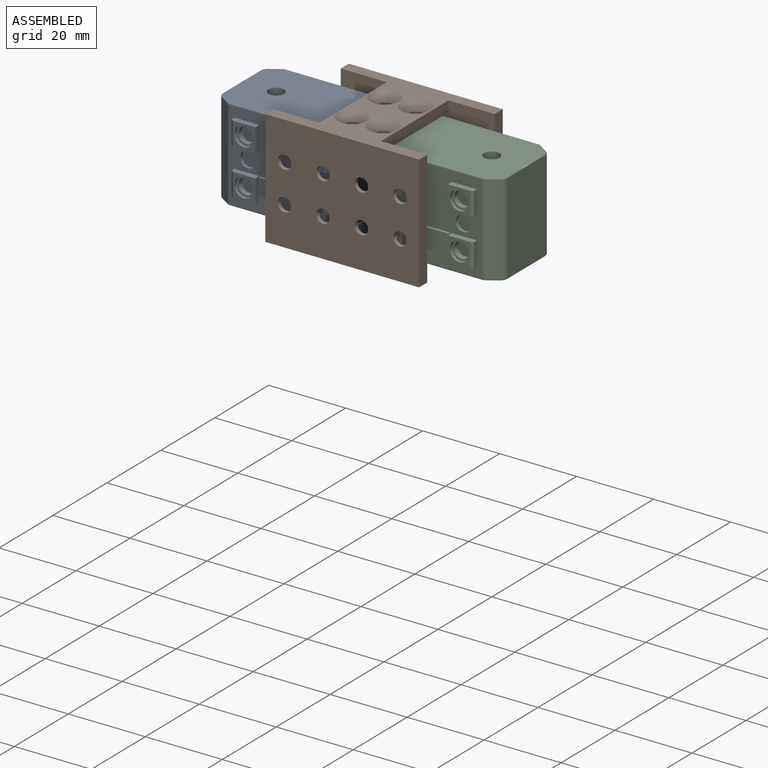
[diagram: assembled view]
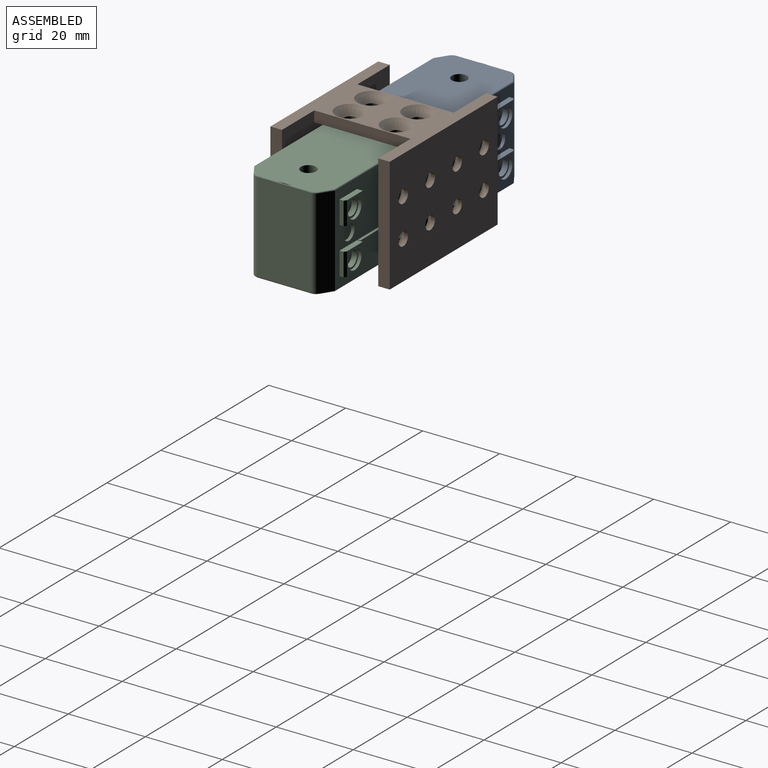
[diagram: assembled view, second angle]
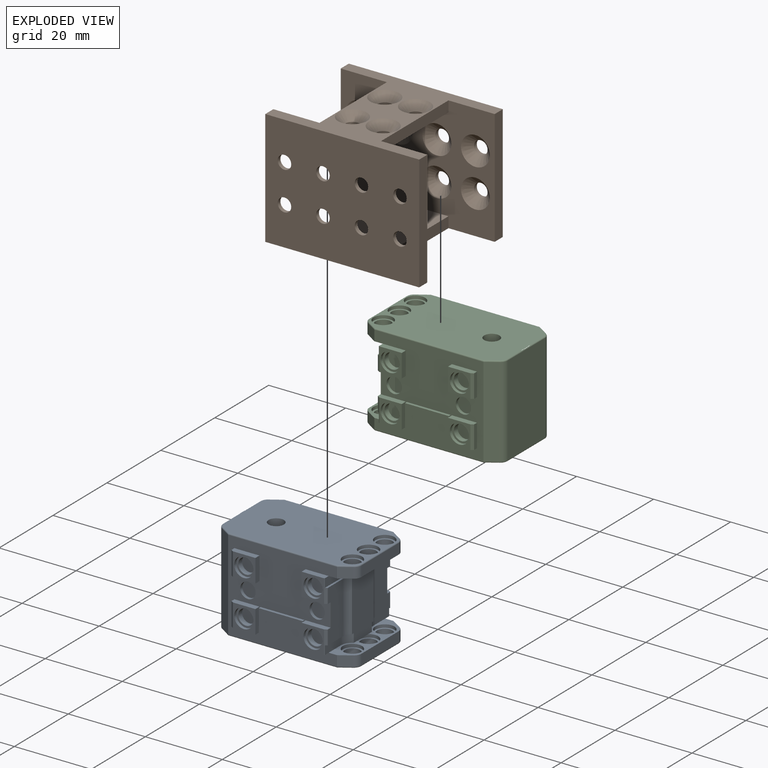
[diagram: exploded view]
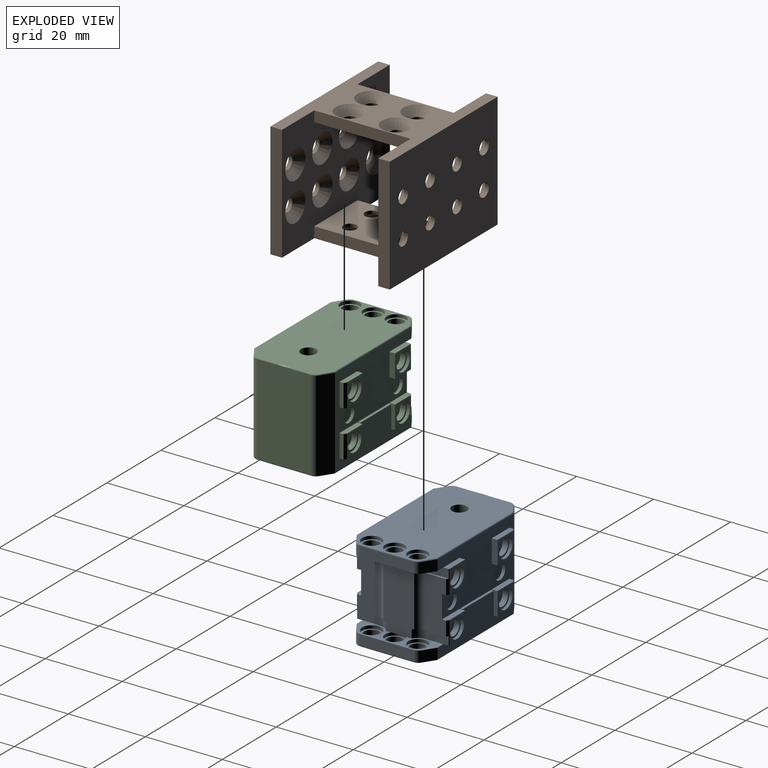
[diagram: exploded view, second angle]
ASSEMBLY  parts=3 mates=2
PART A: 203 faces, bbox 24x36x24 mm
  f0: cylinder r=8.9mm len=3.75mm, axis (0,0,1), area 0mm2, adj f1,f138
  f1: plane 35.6x20.4mm, normal (0,0,1), area 633.5mm2, adj f0,f38,f39,f40,f42,f43,f44,f61
  f2: plane 4x4mm, normal (1,0,0), area 12.6mm2, adj f10
  f3: plane 4x4mm, normal (1,0,0), area 12.6mm2, adj f11
  f4: plane 4x4mm, normal (1,0,0), area 12.6mm2, adj f12
  f5: plane 4x4mm, normal (1,0,0), area 12.6mm2, adj f13
  f6: plane 4x4mm, normal (-1,0,0), area 12.6mm2, adj f14
  f7: plane 4x4mm, normal (-1,0,0), area 12.6mm2, adj f15
  f8: plane 4x4mm, normal (-1,0,0), area 12.6mm2, adj f16
  f9: plane 4x4mm, normal (-1,0,0), area 12.6mm2, adj f17
  f10: cylinder r=2mm len=4mm, axis (1,0,0), area 17.6mm2, adj f2,f18
  f11: cylinder r=2mm len=4mm, axis (1,0,0), area 17.6mm2, adj f3,f19
  f12: cylinder r=2mm len=4mm, axis (1,0,0), area 17.6mm2, adj f4,f20
  f13: cylinder r=2mm len=4mm, axis (1,0,0), area 17.6mm2, adj f5,f21
  f14: cylinder r=2mm len=4mm, axis (1,0,0), area 17.6mm2, adj f6,f28
  f15: cylinder r=2mm len=4mm, axis (1,0,0), area 17.6mm2, adj f7,f29
  f16: cylinder r=2mm len=4mm, axis (1,0,0), area 17.6mm2, adj f8,f31
  f17: cylinder r=2mm len=4mm, axis (1,0,0), area 17.6mm2, adj f9,f32
  f18: plane 5x5mm, normal (1,0,0), area 7.1mm2, adj f10,f34
  f19: plane 5x5mm, normal (1,0,0), area 7.1mm2, adj f11,f35
  f20: plane 5x5mm, normal (1,0,0), area 7.1mm2, adj f12,f36
  f21: plane 5x5mm, normal (1,0,0), area 7.1mm2, adj f13,f37
  f22: plane 5x5mm, normal (0,0,1), area 7.1mm2, adj f26,f38
  f23: plane 5x5mm, normal (0,0,1), area 7.1mm2, adj f25,f39
  f24: plane 5x5mm, normal (0,0,1), area 7.1mm2, adj f27,f40
  f25: cylinder r=2mm len=4mm, axis (0,0,1), area 17.6mm2, adj f23,f41
  f26: cylinder r=2mm len=4mm, axis (0,0,1), area 17.6mm2, adj f22,f45
  f27: cylinder r=2mm len=4mm, axis (0,0,1), area 17.6mm2, adj f24,f46
  f28: plane 5x5mm, normal (-1,0,0), area 7.1mm2, adj f14,f47
  f29: plane 5x5mm, normal (-1,0,0), area 7.1mm2, adj f15,f48
  f30: plane 4x1mm, normal (0,0,1), area 2.8mm2, adj f49,f74
  f31: plane 5x5mm, normal (-1,0,0), area 7.1mm2, adj f16,f50
  f32: plane 5x5mm, normal (-1,0,0), area 7.1mm2, adj f17,f51
  f33: plane 4x1mm, normal (0,0,-1), area 2.8mm2, adj f49,f91
  f34: cylinder r=2.5mm len=5mm, axis (1,0,0), area 12.6mm2, adj f18,f54
  f35: cylinder r=2.5mm len=5mm, axis (1,0,0), area 12.6mm2, adj f19,f60
  f36: cylinder r=2.5mm len=5mm, axis (1,0,0), area 12.6mm2, adj f20,f63
  f37: cylinder r=2.5mm len=5mm, axis (1,0,0), area 12.6mm2, adj f21,f65
  f38: cylinder r=2.5mm len=5mm, axis (0,0,1), area 12.6mm2, adj f1,f22
  f39: cylinder r=2.5mm len=5mm, axis (0,0,1), area 12.6mm2, adj f1,f23
  f40: cylinder r=2.5mm len=5mm, axis (0,0,1), area 12.6mm2, adj f1,f24
  f41: plane 5x5mm, normal (0,0,-1), area 7.1mm2, adj f25,f74
  f42: revolved ~1.68x1.07mm, area 0.9mm2, adj f1,f43,f73,f77
  f43: cylinder r=0.3mm len=13.83mm, axis (1,0,0), area 6.5mm2, adj f1,f42,f44,f78
  f44: revolved ~1.68x1.07mm, area 0.9mm2, adj f1,f43,f61,f79
  f45: plane 5x5mm, normal (0,0,-1), area 7.1mm2, adj f26,f82
  f46: plane 5x5mm, normal (0,0,-1), area 7.1mm2, adj f27,f83
  f47: cylinder r=2.5mm len=5mm, axis (1,0,0), area 12.6mm2, adj f28,f84
  f48: cylinder r=2.5mm len=5mm, axis (1,0,0), area 12.6mm2, adj f29,f90
  f49: plane 18x8mm, normal (0,-1,0), area 138.4mm2, adj f30,f33,f56,f57,f58,f75,f81,f86
  f50: cylinder r=2.5mm len=5mm, axis (1,0,0), area 12.6mm2, adj f31,f99
  f51: cylinder r=2.5mm len=5mm, axis (1,0,0), area 12.6mm2, adj f32,f101
  f52: revolved ~1.68x1.07mm, area 0.9mm2, adj f111,f186,f187,f200
  f53: revolved ~1.68x1.07mm, area 0.9mm2, adj f112,f187,f188,f200
  f54: plane 6x5.84mm, normal (1,0,0), area 15.4mm2, adj f34,f59,f114,f115,f116
  f55: plane 6x0.66mm, normal (0.84,-0.54,0), area 3.3mm2, adj f56,f60,f80,f117,f118,f120
  f56: plane 8.54x1.53mm, normal (0,0,1), area 4.5mm2, adj f49,f55,f57,f80,f81,f117
  f57: cylinder r=2.5mm len=13.5mm, axis (0,0,1), area 31.3mm2, adj f49,f56,f58,f117
  f58: plane 8.54x1.53mm, normal (0,0,-1), area 4.5mm2, adj f49,f57,f59,f94,f95,f117
  f59: plane 6x0.66mm, normal (0.84,-0.54,0), area 3.3mm2, adj f54,f58,f94,f114,f116,f117
  f60: plane 6x5.84mm, normal (1,0,0), area 15.4mm2, adj f35,f55,f118,f119,f120
  f61: cylinder r=0.3mm len=3.1mm, axis (0.54,0.84,0), area 1.6mm2, adj f1,f44,f113,f121
  f62: plane 6x0.66mm, normal (0.84,0.54,0), area 4.7mm2, adj f63,f122,f123,f124
  f63: plane 6x5.84mm, normal (1,0,0), area 15.4mm2, adj f36,f62,f122,f124,f125
  f64: plane 6x0.66mm, normal (0.84,0.54,0), area 4.7mm2, adj f65,f126,f127,f128
  f65: plane 6x5.84mm, normal (1,0,0), area 15.4mm2, adj f37,f64,f126,f128,f129
  f66: plane 4x4mm, normal (1,0,0), area 12.6mm2, adj f130
  f67: plane 4x4mm, normal (1,0,0), area 12.6mm2, adj f131
  f68: plane 11.4x6mm, normal (1,0,0), area 68.4mm2, adj f132,f133,f134,f135
  f69: revolved ~1.68x1.07mm, area 0.9mm2, adj f137,f190,f191,f200
  f70: revolved ~1.68x1.07mm, area 0.9mm2, adj f1,f136,f137,f138
  f71: revolved ~1.68x1.07mm, area 0.9mm2, adj f139,f191,f192,f200
  f72: revolved ~1.68x1.07mm, area 0.9mm2, adj f1,f138,f139,f140
  f73: cylinder r=0.3mm len=3.1mm, axis (0.54,-0.84,0), area 1.6mm2, adj f1,f42,f141,f142
  f74: cylinder r=2.5mm len=5mm, axis (0,0,1), area 12.6mm2, adj f30,f41,f143
  f75: cylinder r=3.02mm len=2.63mm, axis (0,0,1), area 7.2mm2, adj f49,f76,f88,f143
  f76: plane 5.91x2.25mm, normal (0,-1,0), area 13.3mm2, adj f75,f88,f89,f143,f144
  f77: cylinder r=2mm len=2.7mm, axis (0,0,1), area 5.4mm2, adj f42,f78,f142,f143
  f78: plane 13.83x2.7mm, normal (0,-1,0), area 37.3mm2, adj f43,f77,f79,f143
  f79: cylinder r=2mm len=2.7mm, axis (0,0,1), area 5.4mm2, adj f44,f78,f121,f143
  f80: plane 5.91x2.25mm, normal (0,-1,0), area 13.3mm2, adj f55,f56,f81,f120,f143
  f81: cylinder r=3.02mm len=2.63mm, axis (0,0,1), area 7.2mm2, adj f49,f56,f80,f143
  f82: cylinder r=2.5mm len=5mm, axis (0,0,1), area 12.6mm2, adj f45,f143
  f83: cylinder r=2.5mm len=5mm, axis (0,0,1), area 12.6mm2, adj f46,f143
  f84: plane 6x5.84mm, normal (-1,0,0), area 15.4mm2, adj f47,f89,f144,f145,f146
  f85: plane 6x0.66mm, normal (-0.84,-0.54,0), area 3.3mm2, adj f86,f90,f93,f147,f148,f150
  f86: plane 8.54x1.53mm, normal (0,0,-1), area 4.5mm2, adj f49,f85,f87,f92,f93,f147
  f87: cylinder r=2.5mm len=13.5mm, axis (0,0,1), area 31.3mm2, adj f49,f86,f88,f147
  f88: plane 8.54x1.53mm, normal (0,0,1), area 4.5mm2, adj f49,f75,f76,f87,f89,f147
  f89: plane 6x0.66mm, normal (-0.84,-0.54,0), area 3.3mm2, adj f76,f84,f88,f144,f146,f147
  f90: plane 6x5.84mm, normal (-1,0,0), area 15.4mm2, adj f48,f85,f148,f149,f150
  f91: cylinder r=2.5mm len=5mm, axis (0,0,1), area 12.6mm2, adj f33,f109,f151
  f92: cylinder r=3.02mm len=2.63mm, axis (0,0,1), area 7.2mm2, adj f49,f86,f93,f151
  f93: plane 5.91x2.25mm, normal (0,-1,0), area 13.3mm2, adj f85,f86,f92,f150,f151
  f94: plane 5.91x2.25mm, normal (0,-1,0), area 13.3mm2, adj f58,f59,f95,f114,f151
  f95: cylinder r=3.02mm len=2.63mm, axis (0,0,1), area 7.2mm2, adj f49,f58,f94,f151
  f96: cylinder r=2.5mm len=5mm, axis (0,0,1), area 12.6mm2, adj f108,f151
  f97: cylinder r=2.5mm len=5mm, axis (0,0,1), area 12.6mm2, adj f110,f151
  f98: plane 6x0.66mm, normal (-0.84,0.54,0), area 4.7mm2, adj f99,f152,f153,f154
  f99: plane 6x5.84mm, normal (-1,0,0), area 15.4mm2, adj f50,f98,f152,f154,f155
  f100: plane 6x0.66mm, normal (-0.84,0.54,0), area 4.7mm2, adj f101,f156,f157,f158
  f101: plane 6x5.84mm, normal (-1,0,0), area 15.4mm2, adj f51,f100,f156,f158,f159
  f102: plane 4x4mm, normal (-1,0,0), area 12.6mm2, adj f160
  f103: plane 4x4mm, normal (-1,0,0), area 12.6mm2, adj f161
  f104: plane 11.4x6mm, normal (-1,0,0), area 68.4mm2, adj f162,f163,f164,f165
  f105: plane 4x4mm, normal (0,0,-1), area 12.6mm2, adj f166
  f106: plane 4x4mm, normal (0,0,-1), area 12.6mm2, adj f167
  f107: plane 4x4mm, normal (0,0,-1), area 12.6mm2, adj f168
  f108: plane 5x5mm, normal (0,0,1), area 7.1mm2, adj f96,f169
  f109: plane 5x5mm, normal (0,0,1), area 7.1mm2, adj f91,f170
  f110: plane 5x5mm, normal (0,0,1), area 7.1mm2, adj f97,f171
  f111: cylinder r=2mm len=2.7mm, axis (0,0,1), area 5.4mm2, adj f52,f151,f172,f173
  f112: cylinder r=2mm len=2.7mm, axis (0,0,1), area 5.4mm2, adj f53,f151,f173,f174
  f113: cylinder r=0.3mm len=28.3mm, axis (0,1,0), area 13.3mm2, adj f1,f61,f136,f175
  f114: plane 5.98x1.5mm, normal (0,0,-1), area 9mm2, adj f54,f59,f94,f115,f175
  f115: plane 6x1.5mm, normal (0,1,0), area 9mm2, adj f54,f114,f116,f175
  f116: plane 6.5x1.5mm, normal (0,0,1), area 9.6mm2, adj f54,f59,f115,f117,f175
  f117: plane 13.5x5.57mm, normal (0,-1,0), area 68.8mm2, adj f55,f56,f57,f58,f59,f116,f118,f175
  f118: plane 6.5x1.5mm, normal (0,0,-1), area 9.6mm2, adj f55,f60,f117,f119,f175
  f119: plane 6x1.5mm, normal (0,1,0), area 9mm2, adj f60,f118,f120,f175
  f120: plane 5.98x1.5mm, normal (0,0,1), area 9mm2, adj f55,f60,f80,f119,f175
  f121: plane 2.94x2.7mm, normal (0.84,-0.54,0), area 9.5mm2, adj f61,f79,f143,f175
  f122: plane 6.5x1.5mm, normal (0,0,-1), area 9.6mm2, adj f62,f63,f123,f125,f175
  f123: plane 6x1.07mm, normal (0,1,0), area 6.4mm2, adj f62,f122,f124,f175
  f124: plane 6.5x1.5mm, normal (0,0,1), area 9.6mm2, adj f62,f63,f123,f125,f175
  f125: plane 6x1.5mm, normal (0,-1,0), area 9mm2, adj f63,f122,f124,f175
  f126: plane 6.5x1.5mm, normal (0,0,-1), area 9.6mm2, adj f64,f65,f127,f129,f175
  f127: plane 6x1.07mm, normal (0,1,0), area 6.4mm2, adj f64,f126,f128,f175
  f128: plane 6.5x1.5mm, normal (0,0,1), area 9.6mm2, adj f64,f65,f127,f129,f175
  f129: plane 6x1.5mm, normal (0,-1,0), area 9mm2, adj f65,f126,f128,f175
  f130: cylinder r=2mm len=4mm, axis (1,0,0), area 10.1mm2, adj f66,f175
  f131: cylinder r=2mm len=4mm, axis (1,0,0), area 10.1mm2, adj f67,f175
  f132: plane 11.4x0.7mm, normal (0,0,1), area 8mm2, adj f68,f133,f135,f175
  f133: plane 6x0.7mm, normal (0,-1,0), area 4.2mm2, adj f68,f132,f134,f175
  f134: plane 11.4x0.7mm, normal (0,0,-1), area 8mm2, adj f68,f133,f135,f175
  f135: plane 6x0.7mm, normal (0,1,0), area 4.2mm2, adj f68,f132,f134,f175
  f136: cylinder r=0.3mm len=3.1mm, axis (-0.54,0.84,0), area 1.6mm2, adj f1,f70,f113,f176
  f137: cylinder r=2mm len=23.4mm, axis (0,0,-1), area 46.6mm2, adj f69,f70,f176,f177
  f138: cylinder r=0.3mm len=13.83mm, axis (-1,0,0), area 6mm2, adj f0,f1,f70,f72,f177
  f139: cylinder r=2mm len=23.4mm, axis (0,0,-1), area 46.6mm2, adj f71,f72,f177,f178
  f140: cylinder r=0.3mm len=3.1mm, axis (-0.54,-0.84,0), area 1.6mm2, adj f1,f72,f141,f178
  f141: cylinder r=0.3mm len=28.3mm, axis (0,-1,0), area 13.3mm2, adj f1,f73,f140,f179
  f142: plane 2.94x2.7mm, normal (-0.84,-0.54,0), area 9.5mm2, adj f73,f77,f143,f179
  f143: plane 21x6.03mm, normal (0,0,-1), area 47.8mm2, adj f49,f74,f75,f76,f77,f78,f79,f80
  f144: plane 5.98x1.5mm, normal (0,0,1), area 9mm2, adj f76,f84,f89,f145,f179
  f145: plane 6x1.5mm, normal (0,1,0), area 9mm2, adj f84,f144,f146,f179
  f146: plane 6.5x1.5mm, normal (0,0,-1), area 9.6mm2, adj f84,f89,f145,f147,f179
  f147: plane 13.5x5.57mm, normal (0,-1,0), area 68.8mm2, adj f85,f86,f87,f88,f89,f146,f148,f179
  f148: plane 6.5x1.5mm, normal (0,0,1), area 9.6mm2, adj f85,f90,f147,f149,f179
  f149: plane 6x1.5mm, normal (0,1,0), area 9mm2, adj f90,f148,f150,f179
  f150: plane 5.98x1.5mm, normal (0,0,-1), area 9mm2, adj f85,f90,f93,f149,f179
  f151: plane 21x6.03mm, normal (0,0,1), area 47.8mm2, adj f49,f91,f92,f93,f94,f95,f96,f97
  f152: plane 6.5x1.5mm, normal (0,0,1), area 9.6mm2, adj f98,f99,f153,f155,f179
  f153: plane 6x1.07mm, normal (0,1,0), area 6.4mm2, adj f98,f152,f154,f179
  f154: plane 6.5x1.5mm, normal (0,0,-1), area 9.6mm2, adj f98,f99,f153,f155,f179
  f155: plane 6x1.5mm, normal (0,-1,0), area 9mm2, adj f99,f152,f154,f179
  f156: plane 6.5x1.5mm, normal (0,0,1), area 9.6mm2, adj f100,f101,f157,f159,f179
  f157: plane 6x1.07mm, normal (0,1,0), area 6.4mm2, adj f100,f156,f158,f179
  f158: plane 6.5x1.5mm, normal (0,0,-1), area 9.6mm2, adj f100,f101,f157,f159,f179
  f159: plane 6x1.5mm, normal (0,-1,0), area 9mm2, adj f101,f156,f158,f179
  f160: cylinder r=2mm len=4mm, axis (1,0,0), area 10.1mm2, adj f102,f179
  f161: cylinder r=2mm len=4mm, axis (1,0,0), area 10.1mm2, adj f103,f179
  f162: plane 11.4x0.7mm, normal (0,0,1), area 8mm2, adj f104,f163,f165,f179
  f163: plane 6x0.7mm, normal (0,1,0), area 4.2mm2, adj f104,f162,f164,f179
  f164: plane 11.4x0.7mm, normal (0,0,-1), area 8mm2, adj f104,f163,f165,f179
  f165: plane 6x0.7mm, normal (0,-1,0), area 4.2mm2, adj f104,f162,f164,f179
  f166: cylinder r=2mm len=4mm, axis (0,0,-1), area 27.6mm2, adj f105,f180
  f167: cylinder r=2mm len=4mm, axis (0,0,-1), area 27.6mm2, adj f106,f181
  f168: cylinder r=2mm len=4mm, axis (0,0,-1), area 27.6mm2, adj f107,f182
  f169: cylinder r=2mm len=4mm, axis (0,0,1), area 17.6mm2, adj f108,f183
  f170: cylinder r=2mm len=4mm, axis (0,0,1), area 17.6mm2, adj f109,f184
  f171: cylinder r=2mm len=4mm, axis (0,0,1), area 17.6mm2, adj f110,f185
  f172: plane 2.94x2.7mm, normal (-0.84,-0.54,0), area 9.5mm2, adj f111,f151,f179,f186
  f173: plane 13.83x2.7mm, normal (0,-1,0), area 37.3mm2, adj f111,f112,f151,f187
  f174: plane 2.94x2.7mm, normal (0.84,-0.54,0), area 9.5mm2, adj f112,f151,f175,f188
  f175: plane 28.3x23.4mm, normal (1,0,0), area 383mm2, adj f113,f114,f115,f116,f117,f118,f119,f120
  f176: plane 23.4x2.94mm, normal (0.84,0.54,0), area 82mm2, adj f136,f137,f175,f190
  f177: plane 23.4x13.83mm, normal (0,1,0), area 323.6mm2, adj f137,f138,f139,f191
  f178: plane 23.4x2.94mm, normal (-0.84,0.54,0), area 82mm2, adj f139,f140,f179,f192
  f179: plane 28.3x23.4mm, normal (-1,0,0), area 383mm2, adj f141,f142,f143,f144,f145,f146,f147,f148
  f180: plane 5x5mm, normal (0,0,-1), area 7.1mm2, adj f166,f194
  f181: plane 5x5mm, normal (0,0,-1), area 7.1mm2, adj f167,f195
  f182: plane 5x5mm, normal (0,0,-1), area 7.1mm2, adj f168,f196
  f183: plane 5x5mm, normal (0,0,-1), area 7.1mm2, adj f169,f197
  f184: plane 5x5mm, normal (0,0,-1), area 7.1mm2, adj f170,f198
  f185: plane 5x5mm, normal (0,0,-1), area 7.1mm2, adj f171,f199
  f186: cylinder r=0.3mm len=3.1mm, axis (-0.54,0.84,0), area 1.6mm2, adj f52,f172,f193,f200
  f187: cylinder r=0.3mm len=13.83mm, axis (-1,0,0), area 6.5mm2, adj f52,f53,f173,f200
  f188: cylinder r=0.3mm len=3.1mm, axis (-0.54,-0.84,0), area 1.6mm2, adj f53,f174,f189,f200
  f189: cylinder r=0.3mm len=28.3mm, axis (0,-1,0), area 13.3mm2, adj f175,f188,f190,f200
  f190: cylinder r=0.3mm len=3.1mm, axis (0.54,-0.84,0), area 1.6mm2, adj f69,f176,f189,f200
  f191: cylinder r=0.3mm len=13.83mm, axis (1,0,0), area 6.5mm2, adj f69,f71,f177,f200
  f192: cylinder r=0.3mm len=3.1mm, axis (0.54,0.84,0), area 1.6mm2, adj f71,f178,f193,f200
  f193: cylinder r=0.3mm len=28.3mm, axis (0,1,0), area 13.3mm2, adj f179,f186,f192,f200
  f194: cylinder r=2.5mm len=5mm, axis (0,0,-1), area 12.6mm2, adj f180,f200
  f195: cylinder r=2.5mm len=5mm, axis (0,0,-1), area 12.6mm2, adj f181,f200
  f196: cylinder r=2.5mm len=5mm, axis (0,0,-1), area 12.6mm2, adj f182,f200
  f197: cylinder r=2.5mm len=5mm, axis (0,0,-1), area 12.6mm2, adj f183,f200
  f198: cylinder r=2.5mm len=5mm, axis (0,0,-1), area 12.6mm2, adj f184,f200
  f199: cylinder r=2.5mm len=5mm, axis (0,0,-1), area 12.6mm2, adj f185,f200
  f200: plane 35.4x20.4mm, normal (0,0,-1), area 586.6mm2, adj f52,f53,f69,f71,f186,f187,f188,f189
  f201: cylinder r=2mm len=5mm, axis (0,0,1), area 62.8mm2, adj f1,f202
  f202: plane 4x4mm, normal (0,0,1), area 12.6mm2, adj f201
PART B: 64 faces, bbox 40x31x30 mm
  f0: plane 25x2.8mm, normal (-1,0,0), area 70mm2, adj f7,f9,f13,f14
  f1: plane 25x2.8mm, normal (1,0,0), area 70mm2, adj f7,f9,f12,f15
  f2: plane 30x3mm, normal (-1,0,0), area 90mm2, adj f9,f11,f12,f13
  f3: plane 25x2.8mm, normal (-1,0,0), area 70mm2, adj f7,f9,f12,f15
  f4: plane 30x3mm, normal (-1,0,0), area 90mm2, adj f5,f7,f12,f13
  f5: plane 40x30mm, normal (0,-1,0), area 1123mm2, adj f4,f6,f12,f13,f25,f27,f29,f31
  f6: plane 30x3mm, normal (1,0,0), area 90mm2, adj f5,f7,f12,f13
  f7: plane 40x30mm, normal (0,1,0), area 757mm2, adj f0,f1,f3,f4,f6,f8,f12,f13
  f8: plane 25x2.8mm, normal (1,0,0), area 70mm2, adj f7,f9,f13,f14
  f9: plane 40x30mm, normal (0,-1,0), area 757mm2, adj f0,f1,f2,f3,f8,f10,f12,f13
  f10: plane 30x3mm, normal (1,0,0), area 90mm2, adj f9,f11,f12,f13
  f11: plane 40x30mm, normal (0,1,0), area 1123mm2, adj f2,f10,f12,f13,f24,f26,f28,f30
  f12: plane 40x31mm, normal (0,0,1), area 463.3mm2, adj f1,f2,f3,f4,f5,f6,f7,f9
  f13: plane 40x31mm, normal (0,0,-1), area 463.3mm2, adj f0,f2,f4,f5,f6,f7,f8,f9
  f14: plane 25x16mm, normal (0,0,1), area 361.5mm2, adj f0,f7,f8,f9,f17,f19,f21,f23
  f15: plane 25x16mm, normal (0,0,-1), area 361.5mm2, adj f1,f3,f7,f9,f16,f18,f20,f22
  f16: cylinder r=1.75mm len=3.5mm, axis (0,0,1), area 8.8mm2, adj f15,f62
  f17: cylinder r=1.75mm len=3.5mm, axis (0,0,1), area 8.8mm2, adj f14,f58
  f18: cylinder r=1.75mm len=3.5mm, axis (0,0,1), area 8.8mm2, adj f15,f60
  f19: cylinder r=1.75mm len=3.5mm, axis (0,0,1), area 8.8mm2, adj f14,f59
  f20: cylinder r=1.75mm len=3.5mm, axis (0,0,1), area 8.8mm2, adj f15,f61
  f21: cylinder r=1.75mm len=3.5mm, axis (0,0,1), area 8.8mm2, adj f14,f56
  f22: cylinder r=1.75mm len=3.5mm, axis (0,0,1), area 8.8mm2, adj f15,f63
  f23: cylinder r=1.75mm len=3.5mm, axis (0,0,1), area 8.8mm2, adj f14,f57
  f24: cylinder r=1.75mm len=3.5mm, axis (0,-1,0), area 11mm2, adj f11,f48
  f25: cylinder r=1.75mm len=3.5mm, axis (0,-1,0), area 11mm2, adj f5,f40
  f26: cylinder r=1.75mm len=3.5mm, axis (0,-1,0), area 11mm2, adj f11,f50
  f27: cylinder r=1.75mm len=3.5mm, axis (0,-1,0), area 11mm2, adj f5,f41
  f28: cylinder r=1.75mm len=3.5mm, axis (0,-1,0), area 11mm2, adj f11,f55
  f29: cylinder r=1.75mm len=3.5mm, axis (0,-1,0), area 11mm2, adj f5,f42
  f30: cylinder r=1.75mm len=3.5mm, axis (0,-1,0), area 11mm2, adj f11,f54
  f31: cylinder r=1.75mm len=3.5mm, axis (0,-1,0), area 11mm2, adj f5,f43
  f32: cylinder r=1.75mm len=3.5mm, axis (0,-1,0), area 11mm2, adj f11,f53
  f33: cylinder r=1.75mm len=3.5mm, axis (0,-1,0), area 11mm2, adj f5,f47
  f34: cylinder r=1.75mm len=3.5mm, axis (0,-1,0), area 11mm2, adj f11,f52
  f35: cylinder r=1.75mm len=3.5mm, axis (0,-1,0), area 11mm2, adj f5,f46
  f36: cylinder r=1.75mm len=3.5mm, axis (0,-1,0), area 11mm2, adj f11,f51
  f37: cylinder r=1.75mm len=3.5mm, axis (0,-1,0), area 11mm2, adj f5,f45
  f38: cylinder r=1.75mm len=3.5mm, axis (0,-1,0), area 11mm2, adj f11,f49
  f39: cylinder r=1.75mm len=3.5mm, axis (0,-1,0), area 11mm2, adj f5,f44
  f40: cone r=3.75mm half-angle=45deg, axis (0,1,0), area 48.9mm2, adj f7,f25
  f41: cone r=3.75mm half-angle=45deg, axis (0,1,0), area 48.9mm2, adj f7,f27
  f42: cone r=3.75mm half-angle=45deg, axis (0,1,0), area 48.9mm2, adj f7,f29
  f43: cone r=3.75mm half-angle=45deg, axis (0,1,0), area 48.9mm2, adj f7,f31
  f44: cone r=3.75mm half-angle=45deg, axis (0,1,0), area 48.9mm2, adj f7,f39
  f45: cone r=3.75mm half-angle=45deg, axis (0,1,0), area 48.9mm2, adj f7,f37
  f46: cone r=3.75mm half-angle=45deg, axis (0,1,0), area 48.9mm2, adj f7,f35
  f47: cone r=3.75mm half-angle=45deg, axis (0,1,0), area 48.9mm2, adj f7,f33
  f48: cone r=1.75mm half-angle=45deg, axis (0,-1,0), area 48.9mm2, adj f9,f24
  f49: cone r=1.75mm half-angle=45deg, axis (0,-1,0), area 48.9mm2, adj f9,f38
  f50: cone r=1.75mm half-angle=45deg, axis (0,-1,0), area 48.9mm2, adj f9,f26
  f51: cone r=1.75mm half-angle=45deg, axis (0,-1,0), area 48.9mm2, adj f9,f36
  f52: cone r=1.75mm half-angle=45deg, axis (0,-1,0), area 48.9mm2, adj f9,f34
  f53: cone r=1.75mm half-angle=45deg, axis (0,-1,0), area 48.9mm2, adj f9,f32
  f54: cone r=1.75mm half-angle=45deg, axis (0,-1,0), area 48.9mm2, adj f9,f30
  f55: cone r=1.75mm half-angle=45deg, axis (0,-1,0), area 48.9mm2, adj f9,f28
  f56: cone r=1.75mm half-angle=45deg, axis (0,0,-1), area 48.9mm2, adj f13,f21
  f57: cone r=1.75mm half-angle=45deg, axis (0,0,-1), area 48.9mm2, adj f13,f23
  f58: cone r=1.75mm half-angle=45deg, axis (0,0,-1), area 48.9mm2, adj f13,f17
  f59: cone r=1.75mm half-angle=45deg, axis (0,0,-1), area 48.9mm2, adj f13,f19
  f60: cone r=1.75mm half-angle=45deg, axis (0,0,1), area 48.9mm2, adj f12,f18
  f61: cone r=1.75mm half-angle=45deg, axis (0,0,1), area 48.9mm2, adj f12,f20
  f62: cone r=1.75mm half-angle=45deg, axis (0,0,1), area 48.9mm2, adj f12,f16
  f63: cone r=1.75mm half-angle=45deg, axis (0,0,1), area 48.9mm2, adj f12,f22
PART C: same geometry as A
PLACE A rot(axis=(0,0,1),90deg) t=(-28,0,15.2)mm
PLACE B at identity fixed
PLACE C rot(axis=(0,0,-1),90deg) t=(28,0,15.2)mm
MATE fastened A.f26 <-> B.f20  axis (0,0,1) through (-4,-6,27.2)mm
MATE fastened C.f26 <-> B.f18  axis (0,0,1) through (4,6,27.2)mm
